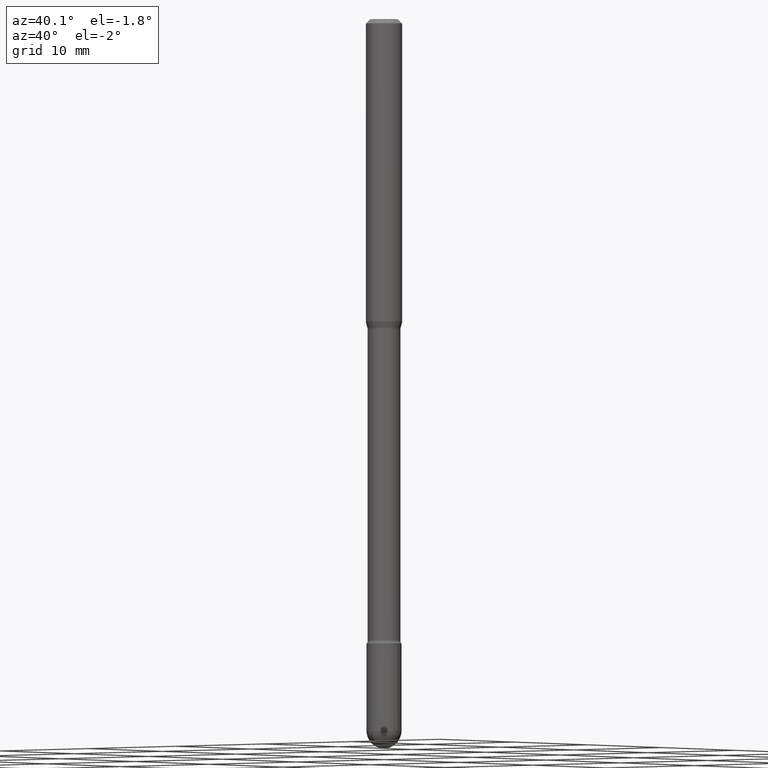
[diagram: clean part render]
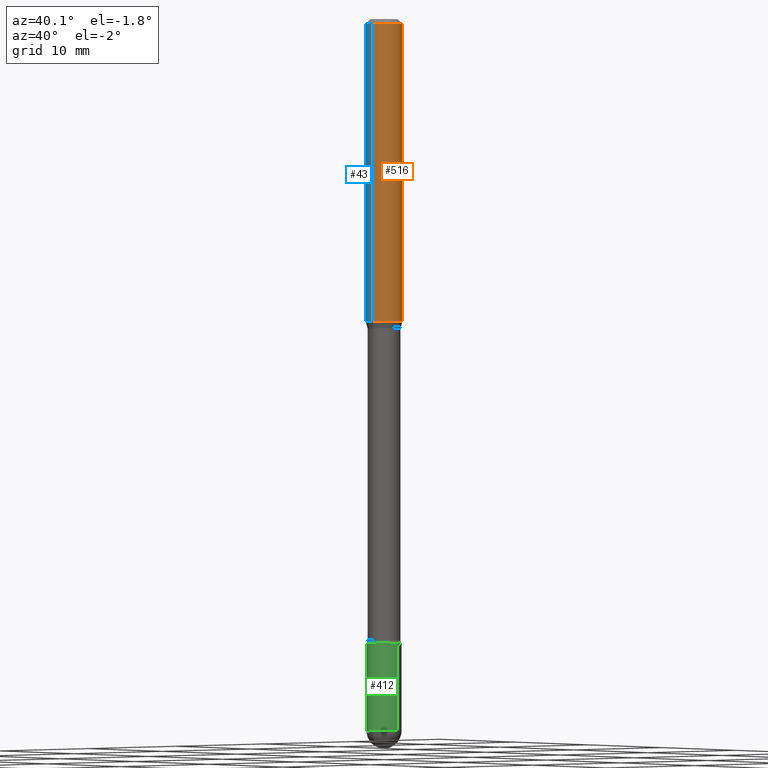
[diagram: same view with three faces highlighted in distinct colors, each labeled with its STEP entity id]
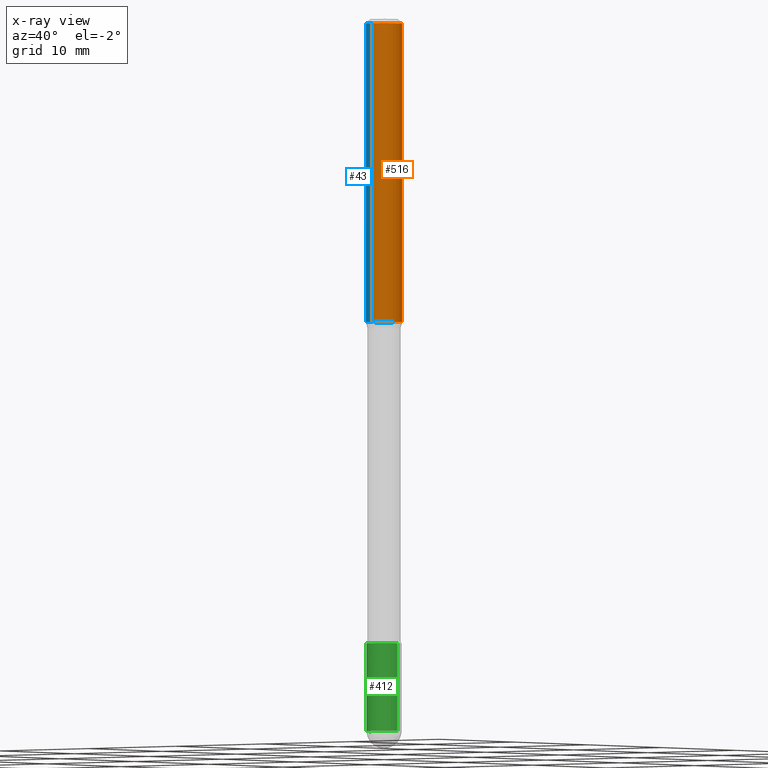
[diagram: x-ray of the same camera — body ghosted, the three highlighted faces saturated]
A machine part, auxiliary view with three faces highlighted in distinct colors.
The next image is the same camera in x-ray (body ghosted, the three faces saturated) — at least one of them is partly hidden behind the body in this view.
Their STEP definitions:

[orange] entity #516 — the highlighted cylindrical surface (edge-blend (fillet) strip) has radius 1.5875 mm, axis along (-0, 0, 1).
#66 = EDGE_CURVE ( 'NONE', #232, #282, #339, .T. ) ;
#80 = CARTESIAN_POINT ( 'NONE',  ( 2.536612333356597965E-29, -3.621359212867038720E-15, -1.037234490073830173 ) ) ;
#83 = CARTESIAN_POINT ( 'NONE',  ( -4.364351673553912750E-16, -0.06250000000000005551, -0.01499999999999986587 ) ) ;
#88 = EDGE_CURVE ( 'NONE', #164, #337, #243, .T. ) ;
#109 = CARTESIAN_POINT ( 'NONE',  ( 4.440892098500877611E-16, 0.06249999999999636402, -1.037234490073830395 ) ) ;
#121 = CIRCLE ( 'NONE', #435, 0.06250000000000000000 ) ;
#151 = ORIENTED_EDGE ( 'NONE', *, *, #251, .T. ) ;
#164 = VERTEX_POINT ( 'NONE', #457 ) ;
#176 = FACE_OUTER_BOUND ( 'NONE', #478, .T. ) ;
#232 = VERTEX_POINT ( 'NONE', #109 ) ;
#243 = LINE ( 'NONE', #505, #562 ) ;
#251 = EDGE_CURVE ( 'NONE', #164, #232, #501, .T. ) ;
#252 = DIRECTION ( 'NONE',  ( -6.982962677686265922E-15, -1.000000000000000000, 4.370956789862821150E-15 ) ) ;
#253 = DIRECTION ( 'NONE',  ( -6.982962677686265922E-15, -1.000000000000000000, 3.491360196293966139E-15 ) ) ;
#256 = AXIS2_PLACEMENT_3D ( 'NONE', #80, #428, #252 ) ;
#282 = VERTEX_POINT ( 'NONE', #343 ) ;
#295 = CARTESIAN_POINT ( 'NONE',  ( -1.169113584055446105E-44, 1.669184350826100908E-30, 4.780733988912460139E-16 ) ) ;
#296 = DIRECTION ( 'NONE',  ( -2.445553399575097308E-29, 3.491360196293965350E-15, 1.000000000000000000 ) ) ;
#326 = EDGE_CURVE ( 'NONE', #337, #282, #121, .T. ) ;
#337 = VERTEX_POINT ( 'NONE', #83 ) ;
#339 = LINE ( 'NONE', #419, #453 ) ;
#343 = CARTESIAN_POINT ( 'NONE',  ( 4.440892098500881555E-16, 0.06249999999999995837, -0.01500000000000030129 ) ) ;
#348 = CYLINDRICAL_SURFACE ( 'NONE', #454, 0.06250000000000000000 ) ;
#349 = DIRECTION ( 'NONE',  ( -6.982962677686265922E-15, -1.000000000000000000, 3.483106191921935554E-15 ) ) ;
#400 = ORIENTED_EDGE ( 'NONE', *, *, #66, .T. ) ;
#419 = CARTESIAN_POINT ( 'NONE',  ( 4.440892098500625669E-16, 0.06250000000000000000, 2.598633866228732289E-16 ) ) ;
#428 = DIRECTION ( 'NONE',  ( -2.445553399575097308E-29, 3.491360196293965350E-15, 1.000000000000000000 ) ) ;
#435 = AXIS2_PLACEMENT_3D ( 'NONE', #514, #296, #349 ) ;
#453 = VECTOR ( 'NONE', #557, 39.37007874015748143 ) ;
#454 = AXIS2_PLACEMENT_3D ( 'NONE', #295, #465, #253 ) ;
#457 = CARTESIAN_POINT ( 'NONE',  ( -4.364351673553663766E-16, -0.06250000000000363598, -1.037234490073829951 ) ) ;
#465 = DIRECTION ( 'NONE',  ( -2.445553399575097308E-29, 3.491360196293965350E-15, 1.000000000000000000 ) ) ;
#472 = ORIENTED_EDGE ( 'NONE', *, *, #88, .F. ) ;
#478 = EDGE_LOOP ( 'NONE', ( #151, #400, #529, #472 ) ) ;
#501 = CIRCLE ( 'NONE', #256, 0.06250000000000000000 ) ;
#505 = CARTESIAN_POINT ( 'NONE',  ( -4.364351673553916201E-16, -0.06250000000000000000, 6.962834111596189469E-16 ) ) ;
#511 = DIRECTION ( 'NONE',  ( -2.445553399575097308E-29, 3.491360196293965350E-15, 1.000000000000000000 ) ) ;
#514 = CARTESIAN_POINT ( 'NONE',  ( 3.668330099362665842E-31, -5.237040294440977311E-17, -0.01500000000000008271 ) ) ;
#516 = ADVANCED_FACE ( 'NONE', ( #176 ), #348, .T. ) ;
#529 = ORIENTED_EDGE ( 'NONE', *, *, #326, .F. ) ;
#557 = DIRECTION ( 'NONE',  ( -2.445553399575097308E-29, 3.491360196293965350E-15, 1.000000000000000000 ) ) ;
#562 = VECTOR ( 'NONE', #511, 39.37007874015748143 ) ;

[blue] entity #43 — the highlighted cylindrical surface (edge-blend (fillet) strip) has radius 1.5875 mm, axis along (-0, 0, 1).
#43 = ADVANCED_FACE ( 'NONE', ( #250 ), #153, .T. ) ;
#47 = ORIENTED_EDGE ( 'NONE', *, *, #88, .T. ) ;
#66 = EDGE_CURVE ( 'NONE', #232, #282, #339, .T. ) ;
#83 = CARTESIAN_POINT ( 'NONE',  ( -4.364351673553912750E-16, -0.06250000000000005551, -0.01499999999999986587 ) ) ;
#88 = EDGE_CURVE ( 'NONE', #164, #337, #243, .T. ) ;
#109 = CARTESIAN_POINT ( 'NONE',  ( 4.440892098500877611E-16, 0.06249999999999636402, -1.037234490073830395 ) ) ;
#118 = CARTESIAN_POINT ( 'NONE',  ( 2.536612333356597965E-29, -3.621359212867038720E-15, -1.037234490073830173 ) ) ;
#135 = DIRECTION ( 'NONE',  ( -6.982962677686265922E-15, -1.000000000000000000, 3.483106191921935554E-15 ) ) ;
#153 = CYLINDRICAL_SURFACE ( 'NONE', #240, 0.06250000000000000000 ) ;
#164 = VERTEX_POINT ( 'NONE', #457 ) ;
#211 = DIRECTION ( 'NONE',  ( -6.982962677686265922E-15, -1.000000000000000000, 4.370956789862821150E-15 ) ) ;
#223 = EDGE_LOOP ( 'NONE', ( #299, #441, #47, #309 ) ) ;
#232 = VERTEX_POINT ( 'NONE', #109 ) ;
#240 = AXIS2_PLACEMENT_3D ( 'NONE', #504, #242, #414 ) ;
#242 = DIRECTION ( 'NONE',  ( -2.445553399575097308E-29, 3.491360196293965350E-15, 1.000000000000000000 ) ) ;
#243 = LINE ( 'NONE', #505, #562 ) ;
#245 = EDGE_CURVE ( 'NONE', #232, #164, #360, .T. ) ;
#248 = AXIS2_PLACEMENT_3D ( 'NONE', #319, #489, #135 ) ;
#250 = FACE_OUTER_BOUND ( 'NONE', #223, .T. ) ;
#282 = VERTEX_POINT ( 'NONE', #343 ) ;
#299 = ORIENTED_EDGE ( 'NONE', *, *, #66, .F. ) ;
#309 = ORIENTED_EDGE ( 'NONE', *, *, #459, .F. ) ;
#319 = CARTESIAN_POINT ( 'NONE',  ( 3.668330099362665842E-31, -5.237040294440977311E-17, -0.01500000000000008271 ) ) ;
#337 = VERTEX_POINT ( 'NONE', #83 ) ;
#339 = LINE ( 'NONE', #419, #453 ) ;
#343 = CARTESIAN_POINT ( 'NONE',  ( 4.440892098500881555E-16, 0.06249999999999995837, -0.01500000000000030129 ) ) ;
#360 = CIRCLE ( 'NONE', #424, 0.06250000000000000000 ) ;
#414 = DIRECTION ( 'NONE',  ( -6.982962677686265922E-15, -1.000000000000000000, 3.491360196293966139E-15 ) ) ;
#419 = CARTESIAN_POINT ( 'NONE',  ( 4.440892098500625669E-16, 0.06250000000000000000, 2.598633866228732289E-16 ) ) ;
#424 = AXIS2_PLACEMENT_3D ( 'NONE', #118, #466, #211 ) ;
#441 = ORIENTED_EDGE ( 'NONE', *, *, #245, .T. ) ;
#453 = VECTOR ( 'NONE', #557, 39.37007874015748143 ) ;
#457 = CARTESIAN_POINT ( 'NONE',  ( -4.364351673553663766E-16, -0.06250000000000363598, -1.037234490073829951 ) ) ;
#459 = EDGE_CURVE ( 'NONE', #282, #337, #463, .T. ) ;
#463 = CIRCLE ( 'NONE', #248, 0.06250000000000000000 ) ;
#466 = DIRECTION ( 'NONE',  ( -2.445553399575097308E-29, 3.491360196293965350E-15, 1.000000000000000000 ) ) ;
#489 = DIRECTION ( 'NONE',  ( -2.445553399575097308E-29, 3.491360196293965350E-15, 1.000000000000000000 ) ) ;
#504 = CARTESIAN_POINT ( 'NONE',  ( -1.169113584055446105E-44, 1.669184350826100908E-30, 4.780733988912460139E-16 ) ) ;
#505 = CARTESIAN_POINT ( 'NONE',  ( -4.364351673553916201E-16, -0.06250000000000000000, 6.962834111596189469E-16 ) ) ;
#511 = DIRECTION ( 'NONE',  ( -2.445553399575097308E-29, 3.491360196293965350E-15, 1.000000000000000000 ) ) ;
#557 = DIRECTION ( 'NONE',  ( -2.445553399575097308E-29, 3.491360196293965350E-15, 1.000000000000000000 ) ) ;
#562 = VECTOR ( 'NONE', #511, 39.37007874015748143 ) ;

[green] entity #412 — the highlighted cylindrical surface (edge-blend (fillet) strip) has radius 1.524 mm, axis along (-0, 0, 1).
#2 = CARTESIAN_POINT ( 'NONE',  ( -0.05999999999999999084, 4.263256414560600464E-16, -2.951361054152942712E-30 ) ) ;
#17 = CARTESIAN_POINT ( 'NONE',  ( 0.05999999999999999778, -7.890747825785508520E-15, -2.140000000000000124 ) ) ;
#19 = VECTOR ( 'NONE', #166, 39.37007874015748143 ) ;
#27 = VERTEX_POINT ( 'NONE', #17 ) ;
#39 = DIRECTION ( 'NONE',  ( 1.000000000000000000, -6.982962677686268288E-15, 0.000000000000000000 ) ) ;
#40 = VECTOR ( 'NONE', #119, 39.37007874015748143 ) ;
#70 = CIRCLE ( 'NONE', #324, 0.05999999999999999084 ) ;
#89 = ORIENTED_EDGE ( 'NONE', *, *, #542, .F. ) ;
#98 = EDGE_LOOP ( 'NONE', ( #492, #486, #445, #329, #89 ) ) ;
#103 = DIRECTION ( 'NONE',  ( -2.445468806185136597E-29, 3.491481338843145583E-15, 1.000000000000000000 ) ) ;
#107 = VERTEX_POINT ( 'NONE', #378 ) ;
#119 = DIRECTION ( 'NONE',  ( -2.445468806185136877E-29, 3.491481338843145188E-15, 1.000000000000000000 ) ) ;
#120 = EDGE_CURVE ( 'NONE', #144, #27, #246, .T. ) ;
#144 = VERTEX_POINT ( 'NONE', #506 ) ;
#149 = AXIS2_PLACEMENT_3D ( 'NONE', #278, #362, #395 ) ;
#166 = DIRECTION ( 'NONE',  ( -2.445468806185136877E-29, 3.491481338843145188E-15, 1.000000000000000000 ) ) ;
#196 = EDGE_CURVE ( 'NONE', #383, #144, #70, .T. ) ;
#215 = DIRECTION ( 'NONE',  ( -2.445468806185136597E-29, 3.491481338843145583E-15, 1.000000000000000000 ) ) ;
#228 = CYLINDRICAL_SURFACE ( 'NONE', #149, 0.05999999999999999084 ) ;
#244 = CARTESIAN_POINT ( 'NONE',  ( 0.05999999999999999084, -4.189777606611759435E-16, 2.925706065477561055E-30 ) ) ;
#246 = LINE ( 'NONE', #244, #40 ) ;
#262 = CARTESIAN_POINT ( 'NONE',  ( -0.06000000000000001166, -7.569166624494744555E-15, -2.140000000000000124 ) ) ;
#263 = EDGE_CURVE ( 'NONE', #107, #285, #509, .T. ) ;
#271 = AXIS2_PLACEMENT_3D ( 'NONE', #311, #103, #485 ) ;
#278 = CARTESIAN_POINT ( 'NONE',  ( 0.000000000000000000, 0.000000000000000000, 0.000000000000000000 ) ) ;
#285 = VERTEX_POINT ( 'NONE', #262 ) ;
#288 = CIRCLE ( 'NONE', #361, 0.05999999999999999778 ) ;
#311 = CARTESIAN_POINT ( 'NONE',  ( 5.966943887091733341E-29, -8.519214466777275048E-15, -2.440000000000000391 ) ) ;
#324 = AXIS2_PLACEMENT_3D ( 'NONE', #335, #372, #417 ) ;
#329 = ORIENTED_EDGE ( 'NONE', *, *, #120, .T. ) ;
#335 = CARTESIAN_POINT ( 'NONE',  ( 5.966943887091733341E-29, -8.519214466777275048E-15, -2.440000000000000391 ) ) ;
#361 = AXIS2_PLACEMENT_3D ( 'NONE', #558, #215, #39 ) ;
#362 = DIRECTION ( 'NONE',  ( -2.445468806185136597E-29, 3.491481338843145583E-15, 1.000000000000000000 ) ) ;
#372 = DIRECTION ( 'NONE',  ( -2.445468806185136597E-29, 3.491481338843145583E-15, 1.000000000000000000 ) ) ;
#378 = CARTESIAN_POINT ( 'NONE',  ( -0.05999999999999999084, -7.569166624494744555E-15, -2.440000000000000391 ) ) ;
#383 = VERTEX_POINT ( 'NONE', #438 ) ;
#395 = DIRECTION ( 'NONE',  ( 1.000000000000000000, -6.982962677686266711E-15, 4.876176775795935793E-29 ) ) ;
#412 = ADVANCED_FACE ( 'NONE', ( #477 ), #228, .T. ) ;
#417 = DIRECTION ( 'NONE',  ( 1.000000000000000000, -6.982962677686269077E-15, 0.000000000000000000 ) ) ;
#438 = CARTESIAN_POINT ( 'NONE',  ( -4.263256414560001423E-16, -0.06000000000000849792, -2.439999999999999947 ) ) ;
#445 = ORIENTED_EDGE ( 'NONE', *, *, #196, .T. ) ;
#473 = EDGE_CURVE ( 'NONE', #107, #383, #484, .T. ) ;
#477 = FACE_OUTER_BOUND ( 'NONE', #98, .T. ) ;
#484 = CIRCLE ( 'NONE', #271, 0.05999999999999999084 ) ;
#485 = DIRECTION ( 'NONE',  ( 1.000000000000000000, -6.982962677686269077E-15, 0.000000000000000000 ) ) ;
#486 = ORIENTED_EDGE ( 'NONE', *, *, #473, .T. ) ;
#492 = ORIENTED_EDGE ( 'NONE', *, *, #263, .F. ) ;
#506 = CARTESIAN_POINT ( 'NONE',  ( 0.05999999999999999084, -8.414470026611980101E-15, -2.440000000000000391 ) ) ;
#509 = LINE ( 'NONE', #2, #19 ) ;
#542 = EDGE_CURVE ( 'NONE', #285, #27, #288, .T. ) ;
#558 = CARTESIAN_POINT ( 'NONE',  ( 5.233303245236192586E-29, -7.471770065124331886E-15, -2.140000000000000124 ) ) ;